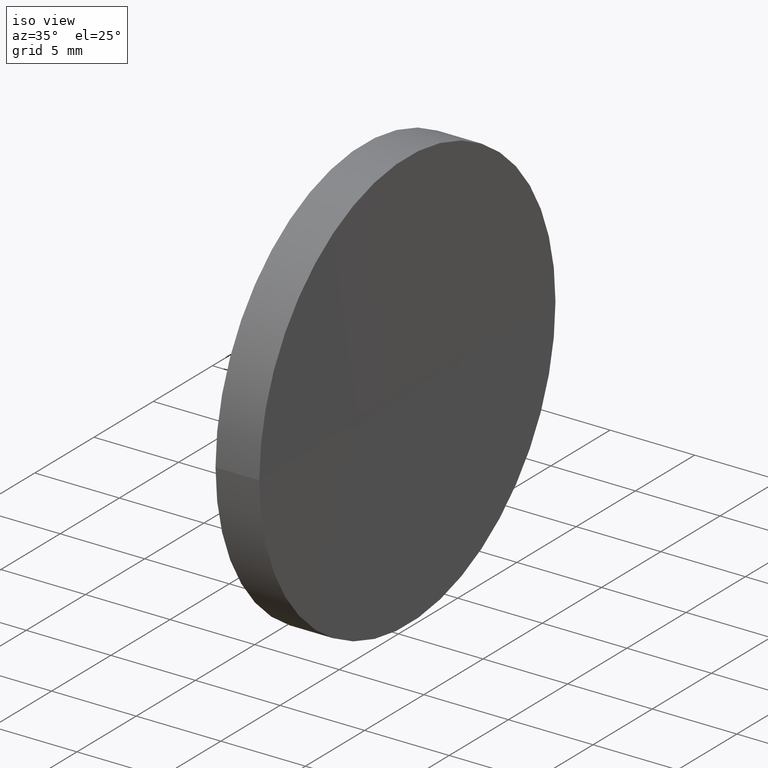
[diagram: clean part render]
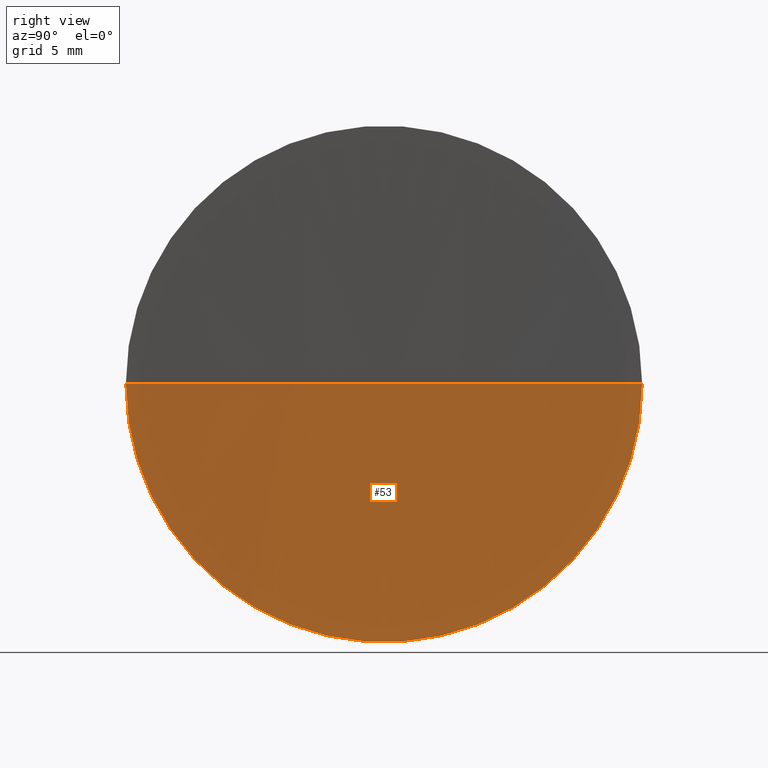
[diagram: tour spotlight — one face highlighted and labeled with its STEP entity id]
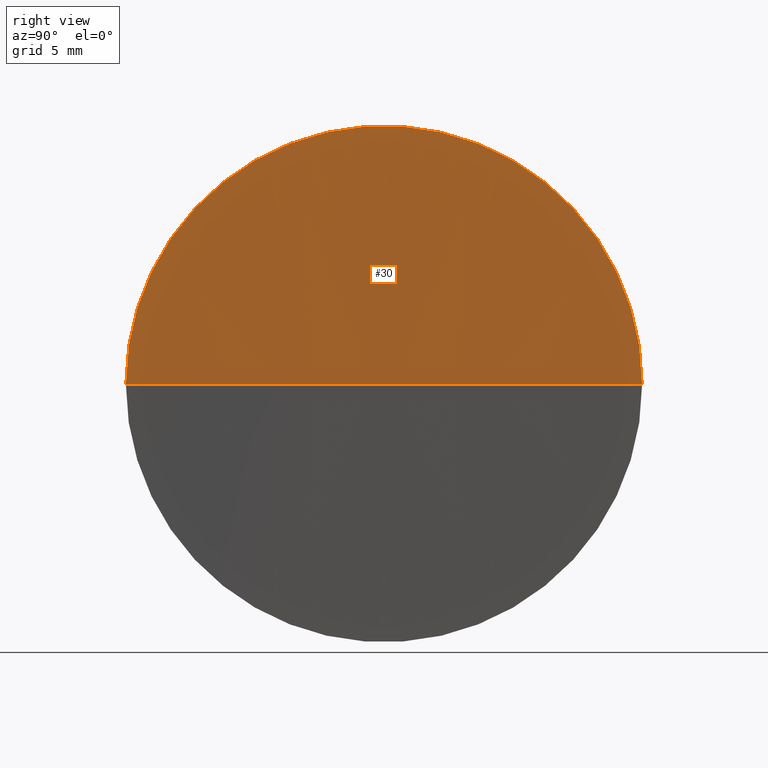
[diagram: tour spotlight — one face highlighted and labeled with its STEP entity id]
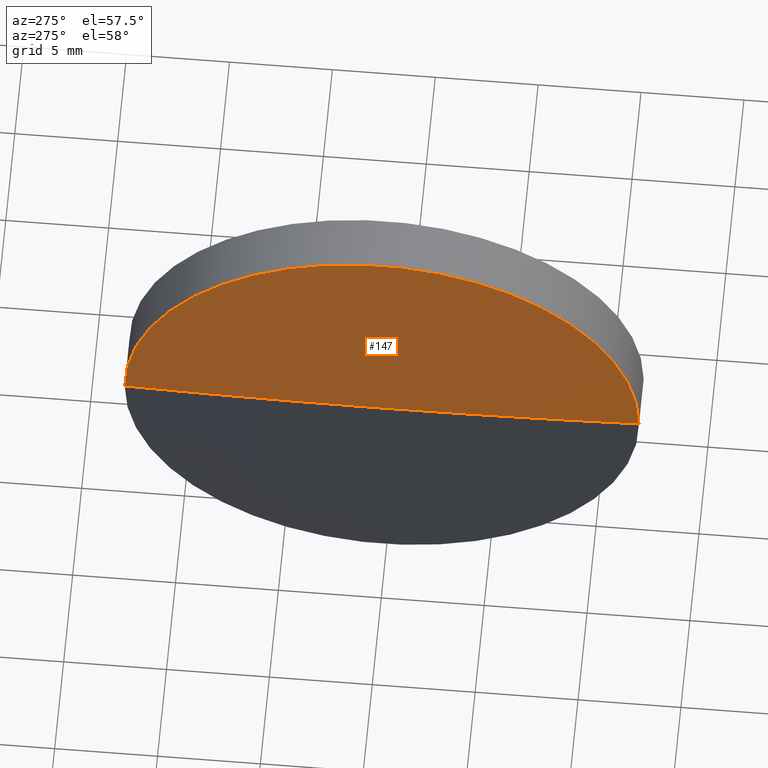
[diagram: tour spotlight — one face highlighted and labeled with its STEP entity id]
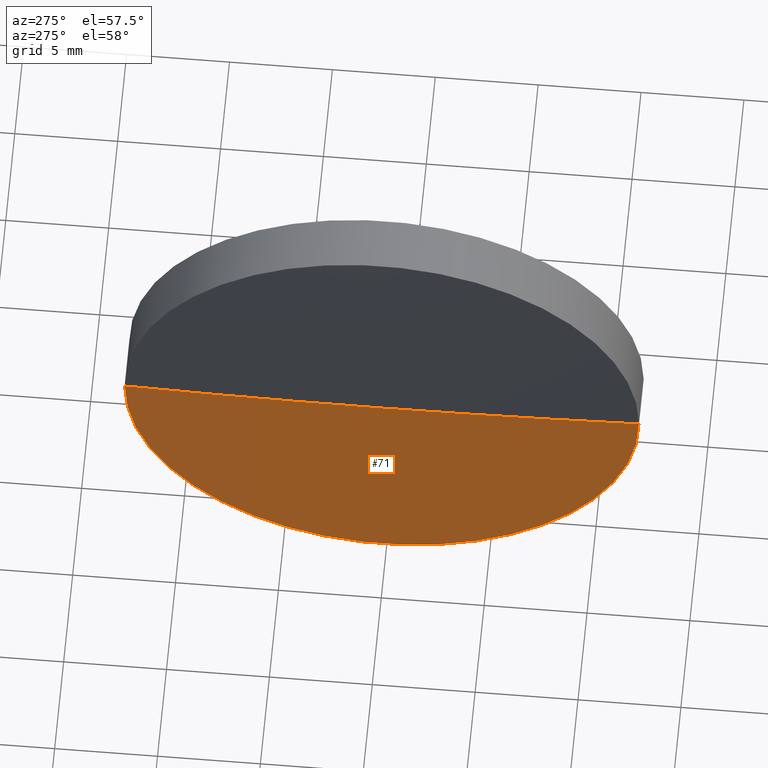
[diagram: tour spotlight — one face highlighted and labeled with its STEP entity id]
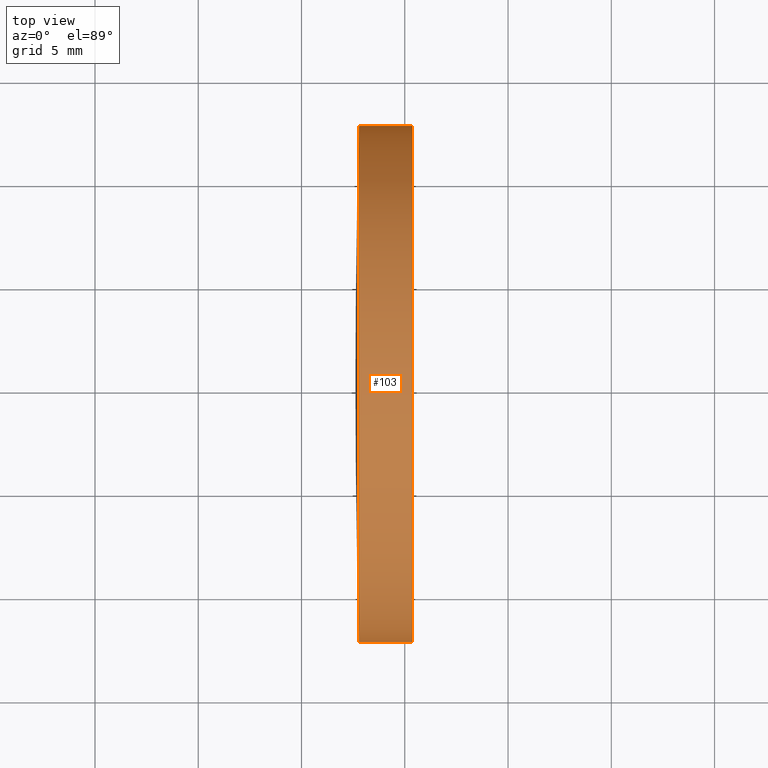
[diagram: tour spotlight — one face highlighted and labeled with its STEP entity id]
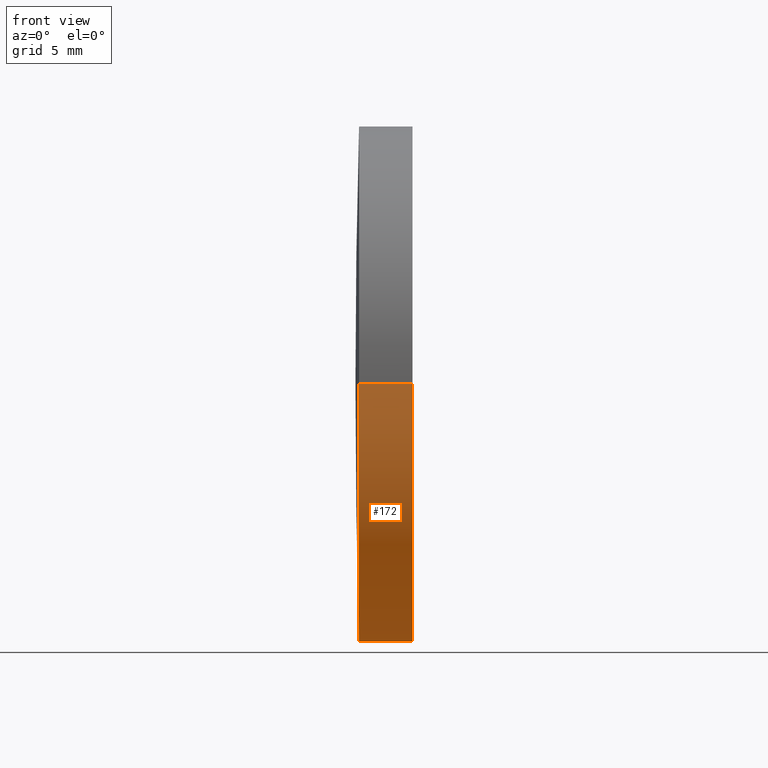
[diagram: tour spotlight — one face highlighted and labeled with its STEP entity id]
A machine part: a face-by-face anatomy tour. The part has 6 B-rep faces; the first image is the clean iso view, then the 6 largest visible faces are spotlighted one at a time (largest first), each with its STEP entity span.

Face 1 — right view, entity #53. In plain terms, the highlighted spherical surface has radius 1200 mm.
Definition (entity closure, byte-faithful):
#18 = ORIENTED_EDGE ( 'NONE', *, *, #99, .F. ) ;
#19 = DIRECTION ( 'NONE',  ( 0.0000000000000000000, 1.000000000000000000, 1.224646799147353200E-016 ) ) ;
#21 = EDGE_CURVE ( 'NONE', #101, #146, #85, .T. ) ;
#22 = DIRECTION ( 'NONE',  ( -1.000000000000000000, -6.937607244762875000E-016, -0.0000000000000000000 ) ) ;
#29 = CARTESIAN_POINT ( 'NONE',  ( 125.3765166120117700, 65.21684047094032600, 0.0000000000000000000 ) ) ;
#41 = EDGE_LOOP ( 'NONE', ( #18, #59, #82 ) ) ;
#53 = ADVANCED_FACE ( 'NONE', ( #123 ), #161, .F. ) ;
#57 = CIRCLE ( 'NONE', #187, 1200.000000000000000 ) ;
#59 = ORIENTED_EDGE ( 'NONE', *, *, #115, .F. ) ;
#64 = CARTESIAN_POINT ( 'NONE',  ( 125.3765166120117700, 52.71684047093827300, -1.530808498934351500E-015 ) ) ;
#65 = DIRECTION ( 'NONE',  ( 0.0000000000000000000, -1.000000000000000000, 0.0000000000000000000 ) ) ;
#76 = DIRECTION ( 'NONE',  ( -7.401486830834377300E-016, 1.000000000000000000, 0.0000000000000000000 ) ) ;
#77 = DIRECTION ( 'NONE',  ( 0.0000000000000000000, -0.0000000000000000000, 1.000000000000000000 ) ) ;
#82 = ORIENTED_EDGE ( 'NONE', *, *, #21, .T. ) ;
#85 = CIRCLE ( 'NONE', #135, 1200.000000000000000 ) ;
#91 = DIRECTION ( 'NONE',  ( -8.496118506040342700E-032, 1.224646799147353200E-016, -1.000000000000000000 ) ) ;
#92 = VERTEX_POINT ( 'NONE', #64 ) ;
#99 = EDGE_CURVE ( 'NONE', #92, #146, #57, .T. ) ;
#101 = VERTEX_POINT ( 'NONE', #138 ) ;
#107 = DIRECTION ( 'NONE',  ( 0.0000000000000000000, 0.0000000000000000000, -1.000000000000000000 ) ) ;
#115 = EDGE_CURVE ( 'NONE', #101, #92, #176, .T. ) ;
#123 = FACE_OUTER_BOUND ( 'NONE', #41, .T. ) ;
#124 = DIRECTION ( 'NONE',  ( 1.000000000000000000, 0.0000000000000000000, 0.0000000000000000000 ) ) ;
#135 = AXIS2_PLACEMENT_3D ( 'NONE', #162, #77, #124 ) ;
#138 = CARTESIAN_POINT ( 'NONE',  ( 125.3765166120117700, 77.71684047094163400, 0.0000000000000000000 ) ) ;
#146 = VERTEX_POINT ( 'NONE', #182 ) ;
#159 = AXIS2_PLACEMENT_3D ( 'NONE', #29, #22, #65 ) ;
#161 = SPHERICAL_SURFACE ( 'NONE', #168, 1200.000000000000000 ) ;
#162 = CARTESIAN_POINT ( 'NONE',  ( 1325.311410679185700, 65.21684047094041100, 0.0000000000000000000 ) ) ;
#163 = CARTESIAN_POINT ( 'NONE',  ( 1325.311410679185700, 65.21684047094041100, 0.0000000000000000000 ) ) ;
#168 = AXIS2_PLACEMENT_3D ( 'NONE', #163, #107, #76 ) ;
#176 = CIRCLE ( 'NONE', #159, 12.50000000000015600 ) ;
#179 = CARTESIAN_POINT ( 'NONE',  ( 1325.311410679185700, 65.21684047094041100, 0.0000000000000000000 ) ) ;
#182 = CARTESIAN_POINT ( 'NONE',  ( 125.3114106791857100, 65.21684047093964400, 0.0000000000000000000 ) ) ;
#187 = AXIS2_PLACEMENT_3D ( 'NONE', #179, #91, #19 ) ;

Face 2 — right view, entity #30. In plain terms, the highlighted spherical surface has radius 1200 mm.
Definition (entity closure, byte-faithful):
#5 = DIRECTION ( 'NONE',  ( 0.0000000000000000000, 0.0000000000000000000, -1.000000000000000000 ) ) ;
#11 = DIRECTION ( 'NONE',  ( -1.000000000000000000, -6.937607244762875000E-016, -0.0000000000000000000 ) ) ;
#14 = ORIENTED_EDGE ( 'NONE', *, *, #104, .F. ) ;
#19 = DIRECTION ( 'NONE',  ( 0.0000000000000000000, 1.000000000000000000, 1.224646799147353200E-016 ) ) ;
#20 = CARTESIAN_POINT ( 'NONE',  ( 1325.311410679185700, 65.21684047094041100, 0.0000000000000000000 ) ) ;
#21 = EDGE_CURVE ( 'NONE', #101, #146, #85, .T. ) ;
#30 = ADVANCED_FACE ( 'NONE', ( #114 ), #45, .F. ) ;
#43 = CIRCLE ( 'NONE', #51, 12.50000000000015600 ) ;
#45 = SPHERICAL_SURFACE ( 'NONE', #134, 1200.000000000000000 ) ;
#51 = AXIS2_PLACEMENT_3D ( 'NONE', #67, #11, #167 ) ;
#54 = ORIENTED_EDGE ( 'NONE', *, *, #99, .T. ) ;
#57 = CIRCLE ( 'NONE', #187, 1200.000000000000000 ) ;
#64 = CARTESIAN_POINT ( 'NONE',  ( 125.3765166120117700, 52.71684047093827300, -1.530808498934351500E-015 ) ) ;
#67 = CARTESIAN_POINT ( 'NONE',  ( 125.3765166120117700, 65.21684047094032600, 0.0000000000000000000 ) ) ;
#74 = DIRECTION ( 'NONE',  ( -7.401486830834377300E-016, 1.000000000000000000, 0.0000000000000000000 ) ) ;
#77 = DIRECTION ( 'NONE',  ( 0.0000000000000000000, -0.0000000000000000000, 1.000000000000000000 ) ) ;
#85 = CIRCLE ( 'NONE', #135, 1200.000000000000000 ) ;
#91 = DIRECTION ( 'NONE',  ( -8.496118506040342700E-032, 1.224646799147353200E-016, -1.000000000000000000 ) ) ;
#92 = VERTEX_POINT ( 'NONE', #64 ) ;
#99 = EDGE_CURVE ( 'NONE', #92, #146, #57, .T. ) ;
#101 = VERTEX_POINT ( 'NONE', #138 ) ;
#104 = EDGE_CURVE ( 'NONE', #92, #101, #43, .T. ) ;
#114 = FACE_OUTER_BOUND ( 'NONE', #191, .T. ) ;
#124 = DIRECTION ( 'NONE',  ( 1.000000000000000000, 0.0000000000000000000, 0.0000000000000000000 ) ) ;
#134 = AXIS2_PLACEMENT_3D ( 'NONE', #20, #5, #74 ) ;
#135 = AXIS2_PLACEMENT_3D ( 'NONE', #162, #77, #124 ) ;
#138 = CARTESIAN_POINT ( 'NONE',  ( 125.3765166120117700, 77.71684047094163400, 0.0000000000000000000 ) ) ;
#146 = VERTEX_POINT ( 'NONE', #182 ) ;
#149 = ORIENTED_EDGE ( 'NONE', *, *, #21, .F. ) ;
#162 = CARTESIAN_POINT ( 'NONE',  ( 1325.311410679185700, 65.21684047094041100, 0.0000000000000000000 ) ) ;
#167 = DIRECTION ( 'NONE',  ( 0.0000000000000000000, -1.000000000000000000, 0.0000000000000000000 ) ) ;
#179 = CARTESIAN_POINT ( 'NONE',  ( 1325.311410679185700, 65.21684047094041100, 0.0000000000000000000 ) ) ;
#182 = CARTESIAN_POINT ( 'NONE',  ( 125.3114106791857100, 65.21684047093964400, 0.0000000000000000000 ) ) ;
#187 = AXIS2_PLACEMENT_3D ( 'NONE', #179, #91, #19 ) ;
#191 = EDGE_LOOP ( 'NONE', ( #14, #54, #149 ) ) ;

Face 3 — auxiliary view, entity #147. In plain terms, the highlighted spherical surface has radius 443.5 mm.
Definition (entity closure, byte-faithful):
#3 = DIRECTION ( 'NONE',  ( 0.0000000000000000000, 1.000000000000000000, 1.224646799147353500E-016 ) ) ;
#7 = CIRCLE ( 'NONE', #118, 12.49999999999992000 ) ;
#10 = DIRECTION ( 'NONE',  ( -0.0000000000000000000, 0.0000000000000000000, 1.000000000000000000 ) ) ;
#24 = CARTESIAN_POINT ( 'NONE',  ( 122.6114106791857400, 65.21684047093999900, 0.0000000000000000000 ) ) ;
#32 = CARTESIAN_POINT ( 'NONE',  ( 122.7876012576749800, 65.21684047094032600, 0.0000000000000000000 ) ) ;
#34 = CARTESIAN_POINT ( 'NONE',  ( 566.1114106791857200, 65.21684047094026900, 0.0000000000000000000 ) ) ;
#35 = EDGE_LOOP ( 'NONE', ( #55, #84, #116 ) ) ;
#40 = AXIS2_PLACEMENT_3D ( 'NONE', #60, #139, #3 ) ;
#55 = ORIENTED_EDGE ( 'NONE', *, *, #87, .F. ) ;
#58 = CARTESIAN_POINT ( 'NONE',  ( 122.7876012576749900, 77.71684047094115000, 0.0000000000000000000 ) ) ;
#60 = CARTESIAN_POINT ( 'NONE',  ( 566.1114106791857200, 65.21684047094026900, 0.0000000000000000000 ) ) ;
#63 = CARTESIAN_POINT ( 'NONE',  ( 122.7876012576750100, 52.71684047093913300, -1.530808498934292900E-015 ) ) ;
#70 = EDGE_CURVE ( 'NONE', #119, #95, #7, .T. ) ;
#75 = CIRCLE ( 'NONE', #40, 443.4999999999999400 ) ;
#84 = ORIENTED_EDGE ( 'NONE', *, *, #70, .T. ) ;
#87 = EDGE_CURVE ( 'NONE', #119, #181, #75, .T. ) ;
#95 = VERTEX_POINT ( 'NONE', #58 ) ;
#97 = CARTESIAN_POINT ( 'NONE',  ( 566.1114106791857200, 65.21684047094026900, 0.0000000000000000000 ) ) ;
#108 = DIRECTION ( 'NONE',  ( -0.0000000000000000000, 0.0000000000000000000, -1.000000000000000000 ) ) ;
#112 = AXIS2_PLACEMENT_3D ( 'NONE', #34, #108, #143 ) ;
#116 = ORIENTED_EDGE ( 'NONE', *, *, #177, .T. ) ;
#118 = AXIS2_PLACEMENT_3D ( 'NONE', #32, #164, #126 ) ;
#119 = VERTEX_POINT ( 'NONE', #63 ) ;
#126 = DIRECTION ( 'NONE',  ( 1.110223024625163600E-015, -1.000000000000000000, 0.0000000000000000000 ) ) ;
#139 = DIRECTION ( 'NONE',  ( -8.496118506040342700E-032, 1.224646799147353200E-016, -1.000000000000000000 ) ) ;
#143 = DIRECTION ( 'NONE',  ( -7.509964089910867700E-016, 1.000000000000000000, 0.0000000000000000000 ) ) ;
#147 = ADVANCED_FACE ( 'NONE', ( #190 ), #148, .T. ) ;
#148 = SPHERICAL_SURFACE ( 'NONE', #112, 443.4999999999999400 ) ;
#155 = DIRECTION ( 'NONE',  ( 1.000000000000000000, 0.0000000000000000000, 0.0000000000000000000 ) ) ;
#164 = DIRECTION ( 'NONE',  ( -1.000000000000000000, -6.937607244762875000E-016, -0.0000000000000000000 ) ) ;
#165 = CIRCLE ( 'NONE', #175, 443.4999999999998900 ) ;
#175 = AXIS2_PLACEMENT_3D ( 'NONE', #97, #10, #155 ) ;
#177 = EDGE_CURVE ( 'NONE', #95, #181, #165, .T. ) ;
#181 = VERTEX_POINT ( 'NONE', #24 ) ;
#190 = FACE_OUTER_BOUND ( 'NONE', #35, .T. ) ;

Face 4 — auxiliary view, entity #71. In plain terms, the highlighted spherical surface has radius 443.5 mm.
Definition (entity closure, byte-faithful):
#3 = DIRECTION ( 'NONE',  ( 0.0000000000000000000, 1.000000000000000000, 1.224646799147353500E-016 ) ) ;
#10 = DIRECTION ( 'NONE',  ( -0.0000000000000000000, 0.0000000000000000000, 1.000000000000000000 ) ) ;
#16 = FACE_OUTER_BOUND ( 'NONE', #156, .T. ) ;
#17 = ORIENTED_EDGE ( 'NONE', *, *, #177, .F. ) ;
#24 = CARTESIAN_POINT ( 'NONE',  ( 122.6114106791857400, 65.21684047093999900, 0.0000000000000000000 ) ) ;
#27 = ORIENTED_EDGE ( 'NONE', *, *, #87, .T. ) ;
#36 = CARTESIAN_POINT ( 'NONE',  ( 122.7876012576749800, 65.21684047094032600, 0.0000000000000000000 ) ) ;
#40 = AXIS2_PLACEMENT_3D ( 'NONE', #60, #139, #3 ) ;
#58 = CARTESIAN_POINT ( 'NONE',  ( 122.7876012576749900, 77.71684047094115000, 0.0000000000000000000 ) ) ;
#60 = CARTESIAN_POINT ( 'NONE',  ( 566.1114106791857200, 65.21684047094026900, 0.0000000000000000000 ) ) ;
#62 = CARTESIAN_POINT ( 'NONE',  ( 566.1114106791857200, 65.21684047094026900, 0.0000000000000000000 ) ) ;
#63 = CARTESIAN_POINT ( 'NONE',  ( 122.7876012576750100, 52.71684047093913300, -1.530808498934292900E-015 ) ) ;
#66 = DIRECTION ( 'NONE',  ( -1.000000000000000000, -6.937607244762875000E-016, -0.0000000000000000000 ) ) ;
#71 = ADVANCED_FACE ( 'NONE', ( #16 ), #100, .T. ) ;
#72 = CIRCLE ( 'NONE', #145, 12.49999999999992000 ) ;
#73 = DIRECTION ( 'NONE',  ( -0.0000000000000000000, 0.0000000000000000000, -1.000000000000000000 ) ) ;
#75 = CIRCLE ( 'NONE', #40, 443.4999999999999400 ) ;
#87 = EDGE_CURVE ( 'NONE', #119, #181, #75, .T. ) ;
#95 = VERTEX_POINT ( 'NONE', #58 ) ;
#97 = CARTESIAN_POINT ( 'NONE',  ( 566.1114106791857200, 65.21684047094026900, 0.0000000000000000000 ) ) ;
#100 = SPHERICAL_SURFACE ( 'NONE', #131, 443.4999999999999400 ) ;
#109 = EDGE_CURVE ( 'NONE', #95, #119, #72, .T. ) ;
#119 = VERTEX_POINT ( 'NONE', #63 ) ;
#131 = AXIS2_PLACEMENT_3D ( 'NONE', #62, #73, #180 ) ;
#139 = DIRECTION ( 'NONE',  ( -8.496118506040342700E-032, 1.224646799147353200E-016, -1.000000000000000000 ) ) ;
#145 = AXIS2_PLACEMENT_3D ( 'NONE', #36, #66, #184 ) ;
#155 = DIRECTION ( 'NONE',  ( 1.000000000000000000, 0.0000000000000000000, 0.0000000000000000000 ) ) ;
#156 = EDGE_LOOP ( 'NONE', ( #157, #27, #17 ) ) ;
#157 = ORIENTED_EDGE ( 'NONE', *, *, #109, .T. ) ;
#165 = CIRCLE ( 'NONE', #175, 443.4999999999998900 ) ;
#175 = AXIS2_PLACEMENT_3D ( 'NONE', #97, #10, #155 ) ;
#177 = EDGE_CURVE ( 'NONE', #95, #181, #165, .T. ) ;
#180 = DIRECTION ( 'NONE',  ( -7.509964089910867700E-016, 1.000000000000000000, 0.0000000000000000000 ) ) ;
#181 = VERTEX_POINT ( 'NONE', #24 ) ;
#184 = DIRECTION ( 'NONE',  ( 1.110223024625163600E-015, -1.000000000000000000, 0.0000000000000000000 ) ) ;

Face 5 — top view, entity #103. In plain terms, the highlighted cylindrical surface (partial cylindrical patch) has radius 12.5 mm, axis along (-1, -0, -0).
Definition (entity closure, byte-faithful):
#6 = ORIENTED_EDGE ( 'NONE', *, *, #106, .F. ) ;
#7 = CIRCLE ( 'NONE', #118, 12.49999999999992000 ) ;
#11 = DIRECTION ( 'NONE',  ( -1.000000000000000000, -6.937607244762875000E-016, -0.0000000000000000000 ) ) ;
#13 = LINE ( 'NONE', #79, #86 ) ;
#25 = FACE_OUTER_BOUND ( 'NONE', #78, .T. ) ;
#31 = EDGE_CURVE ( 'NONE', #101, #95, #13, .T. ) ;
#32 = CARTESIAN_POINT ( 'NONE',  ( 122.7876012576749800, 65.21684047094032600, 0.0000000000000000000 ) ) ;
#37 = VECTOR ( 'NONE', #151, 1000.000000000000000 ) ;
#42 = DIRECTION ( 'NONE',  ( 1.110223024625152400E-015, -1.000000000000000000, 0.0000000000000000000 ) ) ;
#43 = CIRCLE ( 'NONE', #51, 12.50000000000015600 ) ;
#44 = CARTESIAN_POINT ( 'NONE',  ( 115.9444912979631800, 52.71684047094028400, 0.0000000000000000000 ) ) ;
#51 = AXIS2_PLACEMENT_3D ( 'NONE', #67, #11, #167 ) ;
#58 = CARTESIAN_POINT ( 'NONE',  ( 122.7876012576749900, 77.71684047094115000, 0.0000000000000000000 ) ) ;
#63 = CARTESIAN_POINT ( 'NONE',  ( 122.7876012576750100, 52.71684047093913300, -1.530808498934292900E-015 ) ) ;
#64 = CARTESIAN_POINT ( 'NONE',  ( 125.3765166120117700, 52.71684047093827300, -1.530808498934351500E-015 ) ) ;
#67 = CARTESIAN_POINT ( 'NONE',  ( 125.3765166120117700, 65.21684047094032600, 0.0000000000000000000 ) ) ;
#70 = EDGE_CURVE ( 'NONE', #119, #95, #7, .T. ) ;
#78 = EDGE_LOOP ( 'NONE', ( #130, #133, #127, #6 ) ) ;
#79 = CARTESIAN_POINT ( 'NONE',  ( 115.9444912979631500, 77.71684047094038300, 1.530808498934197200E-015 ) ) ;
#80 = CYLINDRICAL_SURFACE ( 'NONE', #152, 12.50000000000004600 ) ;
#86 = VECTOR ( 'NONE', #105, 1000.000000000000000 ) ;
#92 = VERTEX_POINT ( 'NONE', #64 ) ;
#95 = VERTEX_POINT ( 'NONE', #58 ) ;
#101 = VERTEX_POINT ( 'NONE', #138 ) ;
#103 = ADVANCED_FACE ( 'NONE', ( #25 ), #80, .T. ) ;
#104 = EDGE_CURVE ( 'NONE', #92, #101, #43, .T. ) ;
#105 = DIRECTION ( 'NONE',  ( -1.000000000000000000, -6.937607244762875000E-016, -0.0000000000000000000 ) ) ;
#106 = EDGE_CURVE ( 'NONE', #92, #119, #121, .T. ) ;
#118 = AXIS2_PLACEMENT_3D ( 'NONE', #32, #164, #126 ) ;
#119 = VERTEX_POINT ( 'NONE', #63 ) ;
#121 = LINE ( 'NONE', #44, #37 ) ;
#122 = CARTESIAN_POINT ( 'NONE',  ( 115.9444912979631700, 65.21684047094032600, 0.0000000000000000000 ) ) ;
#126 = DIRECTION ( 'NONE',  ( 1.110223024625163600E-015, -1.000000000000000000, 0.0000000000000000000 ) ) ;
#127 = ORIENTED_EDGE ( 'NONE', *, *, #70, .F. ) ;
#130 = ORIENTED_EDGE ( 'NONE', *, *, #104, .T. ) ;
#133 = ORIENTED_EDGE ( 'NONE', *, *, #31, .T. ) ;
#137 = DIRECTION ( 'NONE',  ( -1.000000000000000000, -6.937607244762875000E-016, -0.0000000000000000000 ) ) ;
#138 = CARTESIAN_POINT ( 'NONE',  ( 125.3765166120117700, 77.71684047094163400, 0.0000000000000000000 ) ) ;
#151 = DIRECTION ( 'NONE',  ( -1.000000000000000000, -6.937607244762875000E-016, -0.0000000000000000000 ) ) ;
#152 = AXIS2_PLACEMENT_3D ( 'NONE', #122, #137, #42 ) ;
#164 = DIRECTION ( 'NONE',  ( -1.000000000000000000, -6.937607244762875000E-016, -0.0000000000000000000 ) ) ;
#167 = DIRECTION ( 'NONE',  ( 0.0000000000000000000, -1.000000000000000000, 0.0000000000000000000 ) ) ;

Face 6 — front view, entity #172. In plain terms, the highlighted cylindrical surface (partial cylindrical patch) has radius 12.5 mm, axis along (-1, -0, -0).
Definition (entity closure, byte-faithful):
#9 = ORIENTED_EDGE ( 'NONE', *, *, #109, .F. ) ;
#13 = LINE ( 'NONE', #79, #86 ) ;
#22 = DIRECTION ( 'NONE',  ( -1.000000000000000000, -6.937607244762875000E-016, -0.0000000000000000000 ) ) ;
#29 = CARTESIAN_POINT ( 'NONE',  ( 125.3765166120117700, 65.21684047094032600, 0.0000000000000000000 ) ) ;
#31 = EDGE_CURVE ( 'NONE', #101, #95, #13, .T. ) ;
#36 = CARTESIAN_POINT ( 'NONE',  ( 122.7876012576749800, 65.21684047094032600, 0.0000000000000000000 ) ) ;
#37 = VECTOR ( 'NONE', #151, 1000.000000000000000 ) ;
#39 = ORIENTED_EDGE ( 'NONE', *, *, #106, .T. ) ;
#44 = CARTESIAN_POINT ( 'NONE',  ( 115.9444912979631800, 52.71684047094028400, 0.0000000000000000000 ) ) ;
#48 = DIRECTION ( 'NONE',  ( -1.000000000000000000, -6.937607244762875000E-016, -0.0000000000000000000 ) ) ;
#52 = CYLINDRICAL_SURFACE ( 'NONE', #132, 12.50000000000004600 ) ;
#58 = CARTESIAN_POINT ( 'NONE',  ( 122.7876012576749900, 77.71684047094115000, 0.0000000000000000000 ) ) ;
#63 = CARTESIAN_POINT ( 'NONE',  ( 122.7876012576750100, 52.71684047093913300, -1.530808498934292900E-015 ) ) ;
#64 = CARTESIAN_POINT ( 'NONE',  ( 125.3765166120117700, 52.71684047093827300, -1.530808498934351500E-015 ) ) ;
#65 = DIRECTION ( 'NONE',  ( 0.0000000000000000000, -1.000000000000000000, 0.0000000000000000000 ) ) ;
#66 = DIRECTION ( 'NONE',  ( -1.000000000000000000, -6.937607244762875000E-016, -0.0000000000000000000 ) ) ;
#72 = CIRCLE ( 'NONE', #145, 12.49999999999992000 ) ;
#79 = CARTESIAN_POINT ( 'NONE',  ( 115.9444912979631500, 77.71684047094038300, 1.530808498934197200E-015 ) ) ;
#86 = VECTOR ( 'NONE', #105, 1000.000000000000000 ) ;
#89 = EDGE_LOOP ( 'NONE', ( #125, #170, #39, #9 ) ) ;
#92 = VERTEX_POINT ( 'NONE', #64 ) ;
#95 = VERTEX_POINT ( 'NONE', #58 ) ;
#96 = CARTESIAN_POINT ( 'NONE',  ( 115.9444912979631700, 65.21684047094032600, 0.0000000000000000000 ) ) ;
#101 = VERTEX_POINT ( 'NONE', #138 ) ;
#105 = DIRECTION ( 'NONE',  ( -1.000000000000000000, -6.937607244762875000E-016, -0.0000000000000000000 ) ) ;
#106 = EDGE_CURVE ( 'NONE', #92, #119, #121, .T. ) ;
#109 = EDGE_CURVE ( 'NONE', #95, #119, #72, .T. ) ;
#115 = EDGE_CURVE ( 'NONE', #101, #92, #176, .T. ) ;
#119 = VERTEX_POINT ( 'NONE', #63 ) ;
#121 = LINE ( 'NONE', #44, #37 ) ;
#125 = ORIENTED_EDGE ( 'NONE', *, *, #31, .F. ) ;
#132 = AXIS2_PLACEMENT_3D ( 'NONE', #96, #48, #153 ) ;
#136 = FACE_OUTER_BOUND ( 'NONE', #89, .T. ) ;
#138 = CARTESIAN_POINT ( 'NONE',  ( 125.3765166120117700, 77.71684047094163400, 0.0000000000000000000 ) ) ;
#145 = AXIS2_PLACEMENT_3D ( 'NONE', #36, #66, #184 ) ;
#151 = DIRECTION ( 'NONE',  ( -1.000000000000000000, -6.937607244762875000E-016, -0.0000000000000000000 ) ) ;
#153 = DIRECTION ( 'NONE',  ( 1.110223024625152400E-015, -1.000000000000000000, 0.0000000000000000000 ) ) ;
#159 = AXIS2_PLACEMENT_3D ( 'NONE', #29, #22, #65 ) ;
#170 = ORIENTED_EDGE ( 'NONE', *, *, #115, .T. ) ;
#172 = ADVANCED_FACE ( 'NONE', ( #136 ), #52, .T. ) ;
#176 = CIRCLE ( 'NONE', #159, 12.50000000000015600 ) ;
#184 = DIRECTION ( 'NONE',  ( 1.110223024625163600E-015, -1.000000000000000000, 0.0000000000000000000 ) ) ;